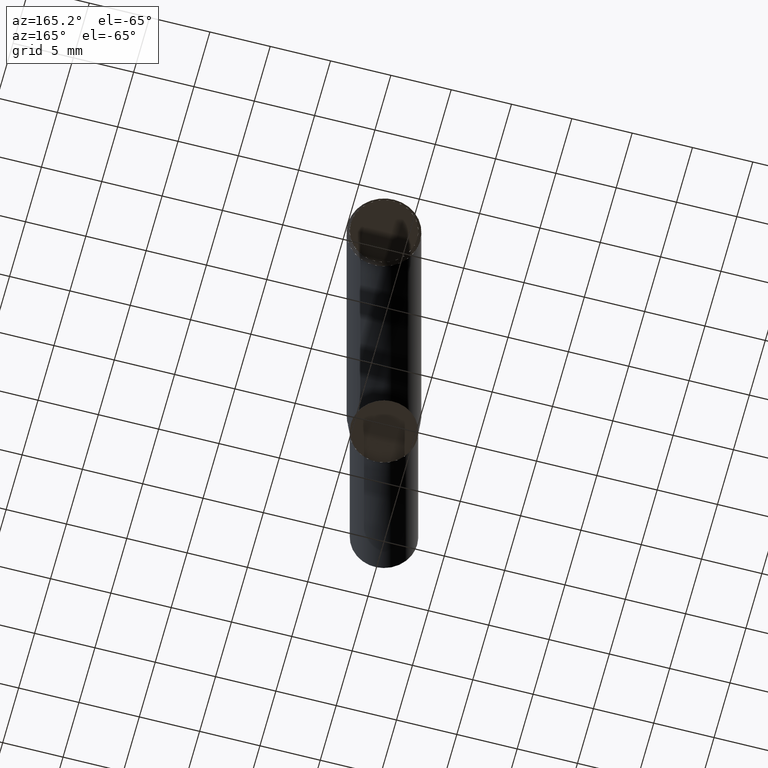
[diagram: clean part render]
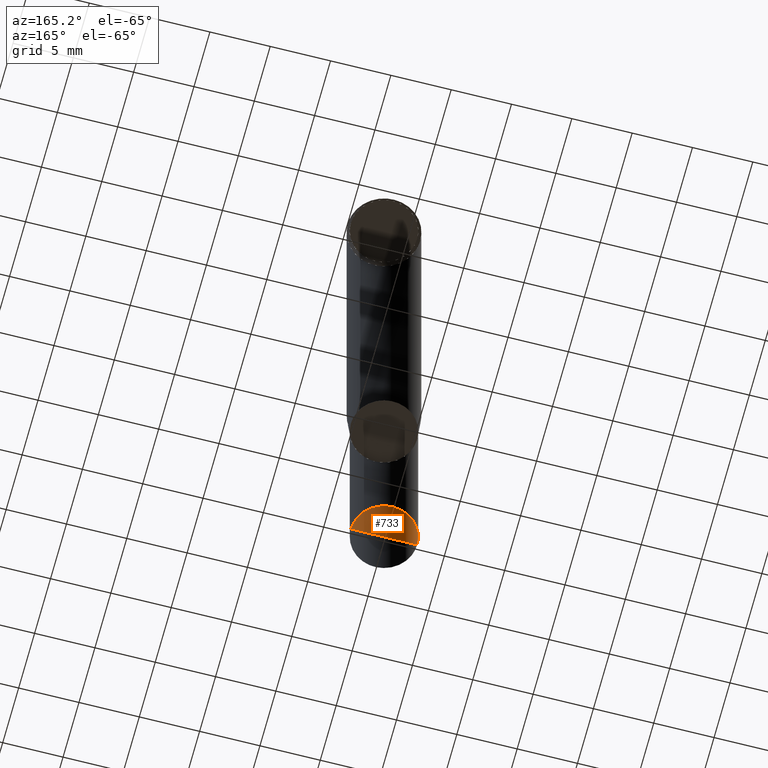
[diagram: same view with one face highlighted and labeled with its STEP entity id]
A machine part, auxiliary view. The second image highlights one B-rep face of the part: STEP entity #733.
In plain terms, the highlighted face is a freeform B-spline surface patch.
Its self-contained STEP definition (entity closure, byte-faithful):
#662=CARTESIAN_POINT('',(0.0,0.0,-23.0));
#663=CARTESIAN_POINT('',(2.75,0.0,-23.0));
#664=CARTESIAN_POINT('',(2.75,2.75,-23.0));
#665=CARTESIAN_POINT('',(0.0,2.75,-23.0));
#666=CARTESIAN_POINT('',(-2.75,2.75,-23.0));
#667=CARTESIAN_POINT('',(-2.75,0.0,-23.0));
#718=(
BOUNDED_SURFACE()
B_SPLINE_SURFACE(1,2,(
(#662,#662,#662,#662,#662),
(#663,#664,#665,#666,#667)
), .UNSPECIFIED.,.F.,.F.,.F.)
B_SPLINE_SURFACE_WITH_KNOTS((2,2),(3,2,3),(
0.0,1.0),(
0.0,0.5,1.0), .UNSPECIFIED.)
GEOMETRIC_REPRESENTATION_ITEM()
RATIONAL_B_SPLINE_SURFACE(((1.0,0.707106781187,1.0,0.707106781187,1.0),
(1.0,0.707106781187,1.0,0.707106781187,1.0)
))
REPRESENTATION_ITEM('')
SURFACE()
);
#719=(
BOUNDED_CURVE()
B_SPLINE_CURVE(1,(#667,#662),.UNSPECIFIED.,.F.,.F.)
B_SPLINE_CURVE_WITH_KNOTS((2,2),
(0.0,1.0),.UNSPECIFIED.)
CURVE()
GEOMETRIC_REPRESENTATION_ITEM()
RATIONAL_B_SPLINE_CURVE((1.0,1.0))
REPRESENTATION_ITEM('')
);
#720=(
BOUNDED_CURVE()
B_SPLINE_CURVE(1,(#662,#663),.UNSPECIFIED.,.F.,.F.)
B_SPLINE_CURVE_WITH_KNOTS((2,2),
(0.0,1.0),.UNSPECIFIED.)
CURVE()
GEOMETRIC_REPRESENTATION_ITEM()
RATIONAL_B_SPLINE_CURVE((1.0,1.0))
REPRESENTATION_ITEM('')
);
#721=(
BOUNDED_CURVE()
B_SPLINE_CURVE(2,(#663,#664,#665,#666,#667),.UNSPECIFIED.,.F.,.F.)
B_SPLINE_CURVE_WITH_KNOTS((3,2,3),
(0.0,0.5,1.0),.UNSPECIFIED.)
CURVE()
GEOMETRIC_REPRESENTATION_ITEM()
RATIONAL_B_SPLINE_CURVE((1.0,0.707106781187,1.0,0.707106781187,1.0))
REPRESENTATION_ITEM('')
);
#722=VERTEX_POINT('',#662);
#723=VERTEX_POINT('',#663);
#724=VERTEX_POINT('',#667);
#725=EDGE_CURVE('',#724,#722,#719,.T.);
#726=EDGE_CURVE('',#722,#723,#720,.T.);
#727=EDGE_CURVE('',#723,#724,#721,.T.);
#728=ORIENTED_EDGE('',*,*,#725,.T.);
#729=ORIENTED_EDGE('',*,*,#726,.T.);
#730=ORIENTED_EDGE('',*,*,#727,.T.);
#731=EDGE_LOOP('',(#728,#729,#730));
#732=FACE_OUTER_BOUND('',#731,.T.);
#733=ADVANCED_FACE('',(#732),#718,.T.);